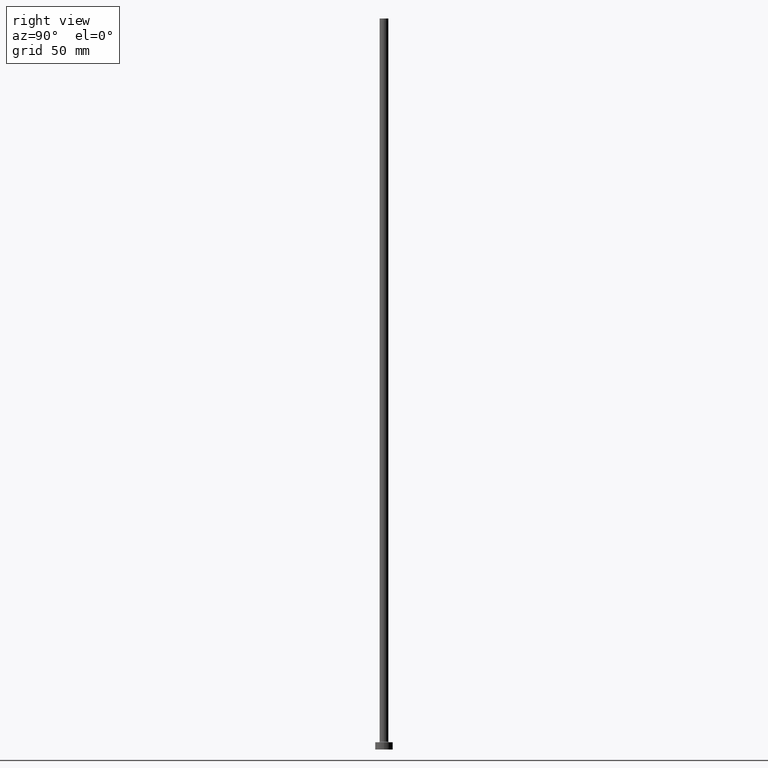
[diagram: clean part render]
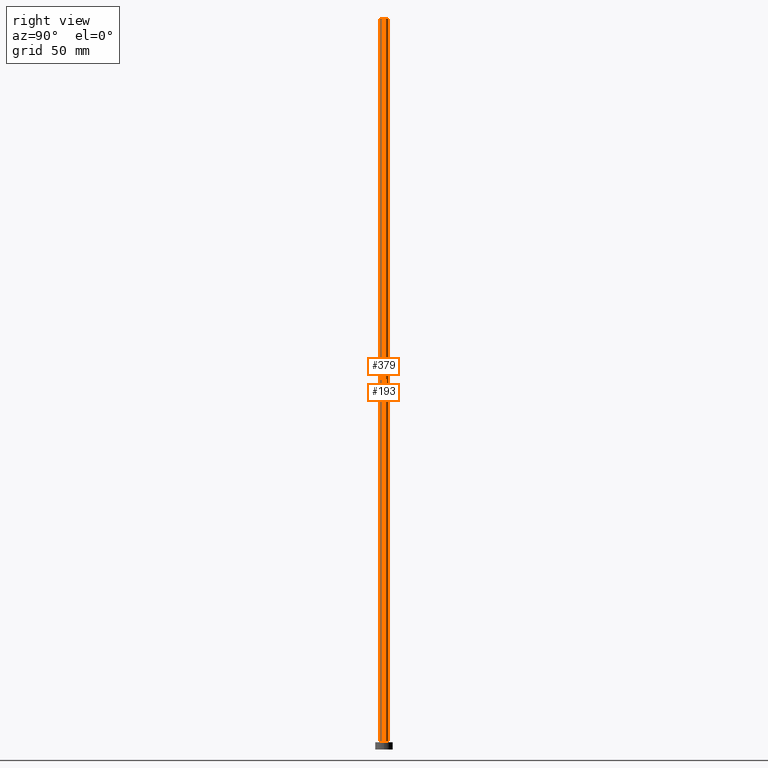
[diagram: same view with one multi-face feature highlighted, each face labeled with its STEP entity id]
A machine part, right view. The highlighted faces form ONE feature: a constant-radius fillet chain: 2 tangent blend faces with common blend radius 3 mm. The faces share edges in the B-rep.
Their STEP definitions:
[1] entity #379 (Cylinder):
#14 = CARTESIAN_POINT ( 'NONE',  ( 3.000000000000000444, 3.673940397442060361E-16, 500.0000000000000000 ) ) ;
#15 = ORIENTED_EDGE ( 'NONE', *, *, #460, .T. ) ;
#18 = AXIS2_PLACEMENT_3D ( 'NONE', #170, #374, #268 ) ;
#24 = VECTOR ( 'NONE', #45, 1000.000000000000000 ) ;
#35 = VERTEX_POINT ( 'NONE', #156 ) ;
#41 = CIRCLE ( 'NONE', #18, 3.000000000000000444 ) ;
#45 = DIRECTION ( 'NONE',  ( -0.000000000000000000, -0.000000000000000000, -1.000000000000000000 ) ) ;
#133 = CARTESIAN_POINT ( 'NONE',  ( -3.000000000000000444, 0.000000000000000000, 5.500000000000005329 ) ) ;
#139 = CYLINDRICAL_SURFACE ( 'NONE', #191, 3.000000000000000444 ) ;
#147 = EDGE_CURVE ( 'NONE', #190, #35, #383, .T. ) ;
#153 = ORIENTED_EDGE ( 'NONE', *, *, #392, .T. ) ;
#156 = CARTESIAN_POINT ( 'NONE',  ( 3.000000000000000444, 3.673940397442060361E-16, 5.500000000000005329 ) ) ;
#170 = CARTESIAN_POINT ( 'NONE',  ( 0.000000000000000000, 0.000000000000000000, 500.0000000000000000 ) ) ;
#190 = VERTEX_POINT ( 'NONE', #14 ) ;
#191 = AXIS2_PLACEMENT_3D ( 'NONE', #274, #409, #377 ) ;
#210 = DIRECTION ( 'NONE',  ( -0.000000000000000000, -0.000000000000000000, -1.000000000000000000 ) ) ;
#226 = FACE_OUTER_BOUND ( 'NONE', #422, .T. ) ;
#236 = EDGE_CURVE ( 'NONE', #344, #190, #41, .T. ) ;
#245 = CARTESIAN_POINT ( 'NONE',  ( 3.000000000000000444, 3.673940397442060361E-16, 500.0000000000000000 ) ) ;
#253 = DIRECTION ( 'NONE',  ( 1.000000000000000000, 0.000000000000000000, 0.000000000000000000 ) ) ;
#260 = CARTESIAN_POINT ( 'NONE',  ( -3.000000000000000444, 0.000000000000000000, 500.0000000000000000 ) ) ;
#268 = DIRECTION ( 'NONE',  ( 1.000000000000000000, 0.000000000000000000, 0.000000000000000000 ) ) ;
#271 = ORIENTED_EDGE ( 'NONE', *, *, #147, .F. ) ;
#274 = CARTESIAN_POINT ( 'NONE',  ( 0.000000000000000000, 0.000000000000000000, 500.0000000000000000 ) ) ;
#276 = CARTESIAN_POINT ( 'NONE',  ( 0.000000000000000000, 0.000000000000000000, 5.500000000000005329 ) ) ;
#279 = CIRCLE ( 'NONE', #352, 3.000000000000000444 ) ;
#322 = LINE ( 'NONE', #260, #24 ) ;
#333 = VECTOR ( 'NONE', #210, 1000.000000000000000 ) ;
#344 = VERTEX_POINT ( 'NONE', #404 ) ;
#352 = AXIS2_PLACEMENT_3D ( 'NONE', #276, #413, #253 ) ;
#370 = VERTEX_POINT ( 'NONE', #133 ) ;
#374 = DIRECTION ( 'NONE',  ( 0.000000000000000000, 0.000000000000000000, 1.000000000000000000 ) ) ;
#377 = DIRECTION ( 'NONE',  ( -1.000000000000000000, 0.000000000000000000, 0.000000000000000000 ) ) ;
#379 = ADVANCED_FACE ( 'NONE', ( #226 ), #139, .T. ) ;
#380 = ORIENTED_EDGE ( 'NONE', *, *, #236, .F. ) ;
#383 = LINE ( 'NONE', #245, #333 ) ;
#392 = EDGE_CURVE ( 'NONE', #370, #35, #279, .T. ) ;
#404 = CARTESIAN_POINT ( 'NONE',  ( -3.000000000000000444, 0.000000000000000000, 500.0000000000000000 ) ) ;
#409 = DIRECTION ( 'NONE',  ( -0.000000000000000000, -0.000000000000000000, -1.000000000000000000 ) ) ;
#413 = DIRECTION ( 'NONE',  ( 0.000000000000000000, 0.000000000000000000, 1.000000000000000000 ) ) ;
#422 = EDGE_LOOP ( 'NONE', ( #271, #380, #15, #153 ) ) ;
#460 = EDGE_CURVE ( 'NONE', #344, #370, #322, .T. ) ;
[2] entity #193 (Cylinder):
#14 = CARTESIAN_POINT ( 'NONE',  ( 3.000000000000000444, 3.673940397442060361E-16, 500.0000000000000000 ) ) ;
#24 = VECTOR ( 'NONE', #45, 1000.000000000000000 ) ;
#26 = ORIENTED_EDGE ( 'NONE', *, *, #390, .F. ) ;
#32 = CIRCLE ( 'NONE', #295, 3.000000000000000444 ) ;
#35 = VERTEX_POINT ( 'NONE', #156 ) ;
#45 = DIRECTION ( 'NONE',  ( -0.000000000000000000, -0.000000000000000000, -1.000000000000000000 ) ) ;
#54 = FACE_OUTER_BOUND ( 'NONE', #303, .T. ) ;
#58 = CARTESIAN_POINT ( 'NONE',  ( 0.000000000000000000, 0.000000000000000000, 500.0000000000000000 ) ) ;
#74 = ORIENTED_EDGE ( 'NONE', *, *, #460, .F. ) ;
#90 = EDGE_CURVE ( 'NONE', #35, #370, #32, .T. ) ;
#111 = CARTESIAN_POINT ( 'NONE',  ( 0.000000000000000000, 0.000000000000000000, 5.500000000000005329 ) ) ;
#113 = DIRECTION ( 'NONE',  ( 1.000000000000000000, 0.000000000000000000, 0.000000000000000000 ) ) ;
#133 = CARTESIAN_POINT ( 'NONE',  ( -3.000000000000000444, 0.000000000000000000, 5.500000000000005329 ) ) ;
#135 = AXIS2_PLACEMENT_3D ( 'NONE', #165, #305, #302 ) ;
#145 = ORIENTED_EDGE ( 'NONE', *, *, #90, .T. ) ;
#147 = EDGE_CURVE ( 'NONE', #190, #35, #383, .T. ) ;
#156 = CARTESIAN_POINT ( 'NONE',  ( 3.000000000000000444, 3.673940397442060361E-16, 5.500000000000005329 ) ) ;
#165 = CARTESIAN_POINT ( 'NONE',  ( 0.000000000000000000, 0.000000000000000000, 500.0000000000000000 ) ) ;
#190 = VERTEX_POINT ( 'NONE', #14 ) ;
#193 = ADVANCED_FACE ( 'NONE', ( #54 ), #259, .T. ) ;
#210 = DIRECTION ( 'NONE',  ( -0.000000000000000000, -0.000000000000000000, -1.000000000000000000 ) ) ;
#215 = DIRECTION ( 'NONE',  ( 0.000000000000000000, 0.000000000000000000, 1.000000000000000000 ) ) ;
#241 = AXIS2_PLACEMENT_3D ( 'NONE', #58, #215, #423 ) ;
#245 = CARTESIAN_POINT ( 'NONE',  ( 3.000000000000000444, 3.673940397442060361E-16, 500.0000000000000000 ) ) ;
#259 = CYLINDRICAL_SURFACE ( 'NONE', #135, 3.000000000000000444 ) ;
#260 = CARTESIAN_POINT ( 'NONE',  ( -3.000000000000000444, 0.000000000000000000, 500.0000000000000000 ) ) ;
#291 = DIRECTION ( 'NONE',  ( 0.000000000000000000, 0.000000000000000000, 1.000000000000000000 ) ) ;
#295 = AXIS2_PLACEMENT_3D ( 'NONE', #111, #291, #113 ) ;
#302 = DIRECTION ( 'NONE',  ( -1.000000000000000000, 0.000000000000000000, 0.000000000000000000 ) ) ;
#303 = EDGE_LOOP ( 'NONE', ( #26, #440, #145, #74 ) ) ;
#305 = DIRECTION ( 'NONE',  ( -0.000000000000000000, -0.000000000000000000, -1.000000000000000000 ) ) ;
#322 = LINE ( 'NONE', #260, #24 ) ;
#333 = VECTOR ( 'NONE', #210, 1000.000000000000000 ) ;
#344 = VERTEX_POINT ( 'NONE', #404 ) ;
#370 = VERTEX_POINT ( 'NONE', #133 ) ;
#383 = LINE ( 'NONE', #245, #333 ) ;
#390 = EDGE_CURVE ( 'NONE', #190, #344, #455, .T. ) ;
#404 = CARTESIAN_POINT ( 'NONE',  ( -3.000000000000000444, 0.000000000000000000, 500.0000000000000000 ) ) ;
#423 = DIRECTION ( 'NONE',  ( 1.000000000000000000, 0.000000000000000000, 0.000000000000000000 ) ) ;
#440 = ORIENTED_EDGE ( 'NONE', *, *, #147, .T. ) ;
#455 = CIRCLE ( 'NONE', #241, 3.000000000000000444 ) ;
#460 = EDGE_CURVE ( 'NONE', #344, #370, #322, .T. ) ;